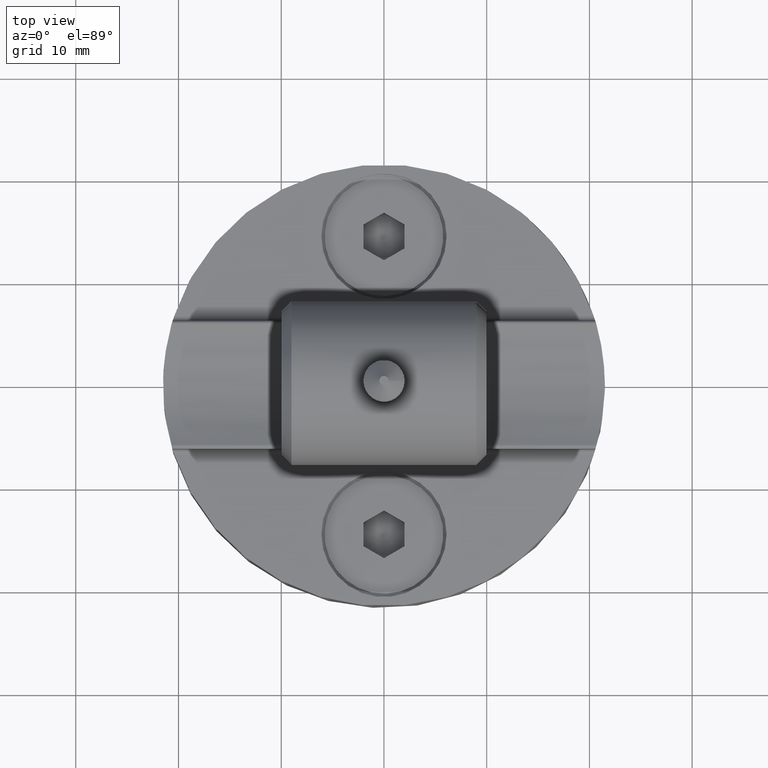
[diagram: clean part render]
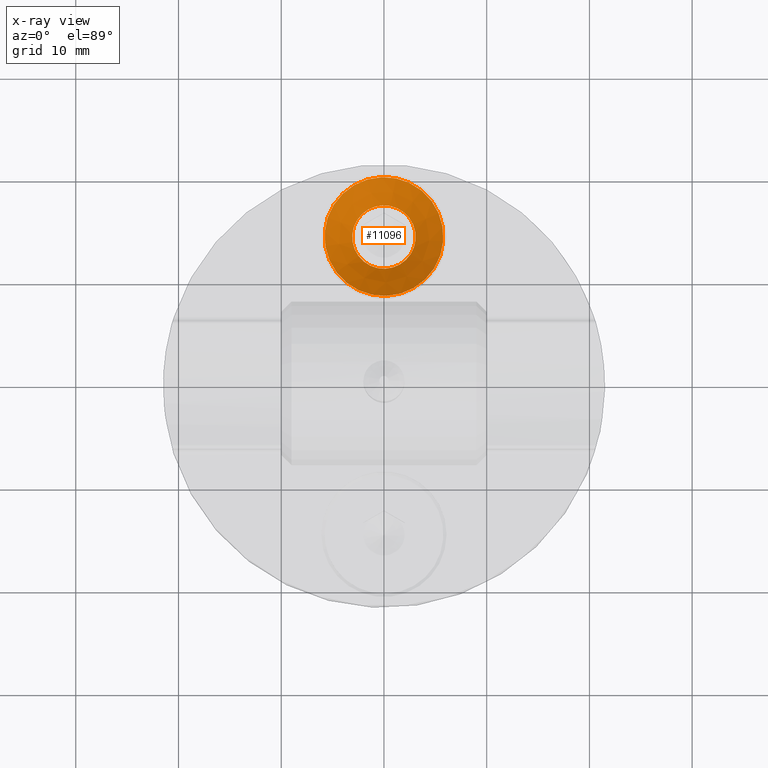
[diagram: x-ray — body ghosted, one internal face saturated and labeled with its STEP entity id]
A machine part, top view, then the same camera in x-ray: the body is ghosted and one INTERNAL B-rep face — a face not visible from any outside direction — is saturated and labeled: STEP entity #11096.
In plain terms, the highlighted conical surface has half-angle 45 deg.
Its self-contained STEP definition (entity closure, byte-faithful):
#379 = CARTESIAN_POINT ( 'NONE',  ( 0.5150000000000131140, 0.000000000000000000, 0.000000000000000000 ) ) ;
#1412 = EDGE_CURVE ( 'NONE', #21910, #21910, #15761, .T. ) ;
#1438 = CARTESIAN_POINT ( 'NONE',  ( 3.212132034355964283, 0.000000000000000000, 3.087867965644036428 ) ) ;
#2583 = EDGE_LOOP ( 'NONE', ( #20438 ) ) ;
#3031 = ORIENTED_EDGE ( 'NONE', *, *, #1412, .F. ) ;
#3758 = CARTESIAN_POINT ( 'NONE',  ( 0.5150000000000131140, 0.000000000000000000, 0.000000000000000000 ) ) ;
#5345 = VERTEX_POINT ( 'NONE', #1438 ) ;
#5583 = DIRECTION ( 'NONE',  ( 0.000000000000000000, 0.000000000000000000, 1.000000000000000000 ) ) ;
#6678 = FACE_BOUND ( 'NONE', #2583, .T. ) ;
#7393 = DIRECTION ( 'NONE',  ( -1.000000000000000000, -0.000000000000000000, -0.000000000000000000 ) ) ;
#8135 = EDGE_LOOP ( 'NONE', ( #3031 ) ) ;
#8134 = AXIS2_PLACEMENT_3D ( 'NONE', #3758, #23045, #19742 ) ;
#8311 = AXIS2_PLACEMENT_3D ( 'NONE', #14404, #7393, #12761 ) ;
#11096 = ADVANCED_FACE ( 'NONE', ( #6678, #16709 ), #11961, .T. ) ;
#11961 = CONICAL_SURFACE ( 'NONE', #17944, 5.785000000000000142, 0.7853981633974503884 ) ;
#12761 = DIRECTION ( 'NONE',  ( 0.000000000000000000, 0.000000000000000000, 1.000000000000000000 ) ) ;
#12978 = DIRECTION ( 'NONE',  ( -1.000000000000000000, -0.000000000000000000, -0.000000000000000000 ) ) ;
#14404 = CARTESIAN_POINT ( 'NONE',  ( 3.212132034355964283, 0.000000000000000000, 0.000000000000000000 ) ) ;
#15761 = CIRCLE ( 'NONE', #8134, 5.785000000000000142 ) ;
#16709 = FACE_OUTER_BOUND ( 'NONE', #8135, .T. ) ;
#17944 = AXIS2_PLACEMENT_3D ( 'NONE', #379, #12978, #5583 ) ;
#18620 = EDGE_CURVE ( 'NONE', #5345, #5345, #18641, .T. ) ;
#18641 = CIRCLE ( 'NONE', #8311, 3.087867965644036428 ) ;
#19742 = DIRECTION ( 'NONE',  ( 0.000000000000000000, 0.000000000000000000, 1.000000000000000000 ) ) ;
#20438 = ORIENTED_EDGE ( 'NONE', *, *, #18620, .T. ) ;
#21910 = VERTEX_POINT ( 'NONE', #22312 ) ;
#22312 = CARTESIAN_POINT ( 'NONE',  ( 0.5150000000000131140, 0.000000000000000000, 5.785000000000000142 ) ) ;
#23045 = DIRECTION ( 'NONE',  ( -1.000000000000000000, -0.000000000000000000, -0.000000000000000000 ) ) ;